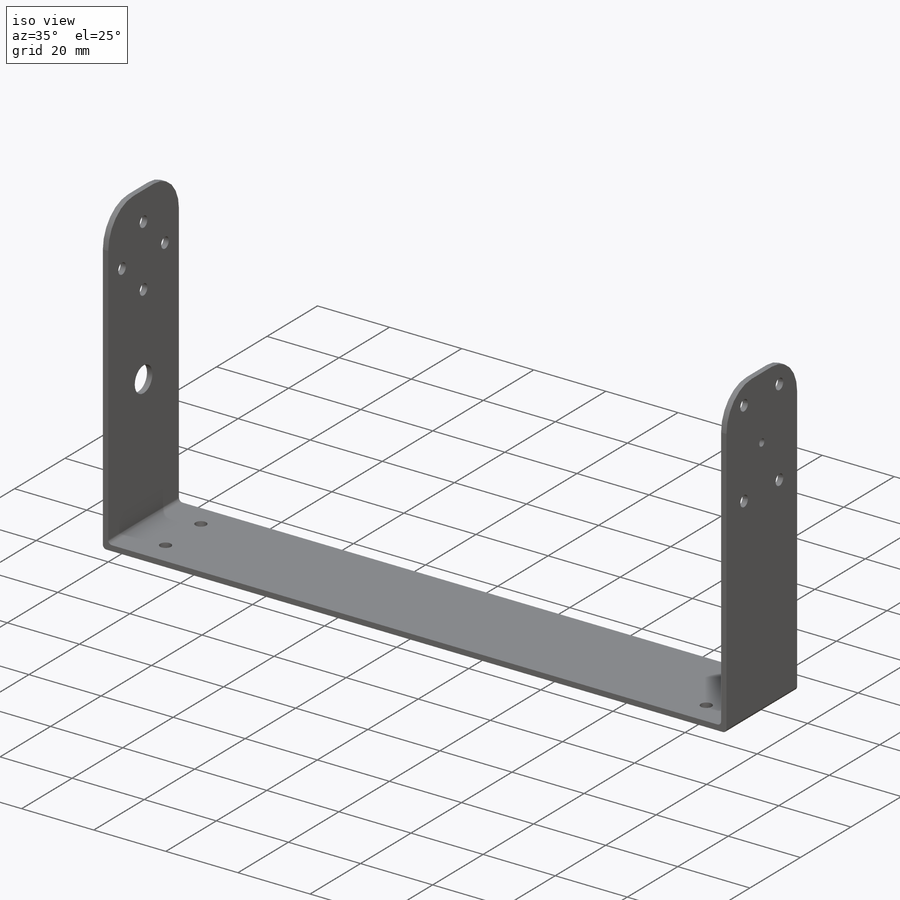
[diagram: iso view]
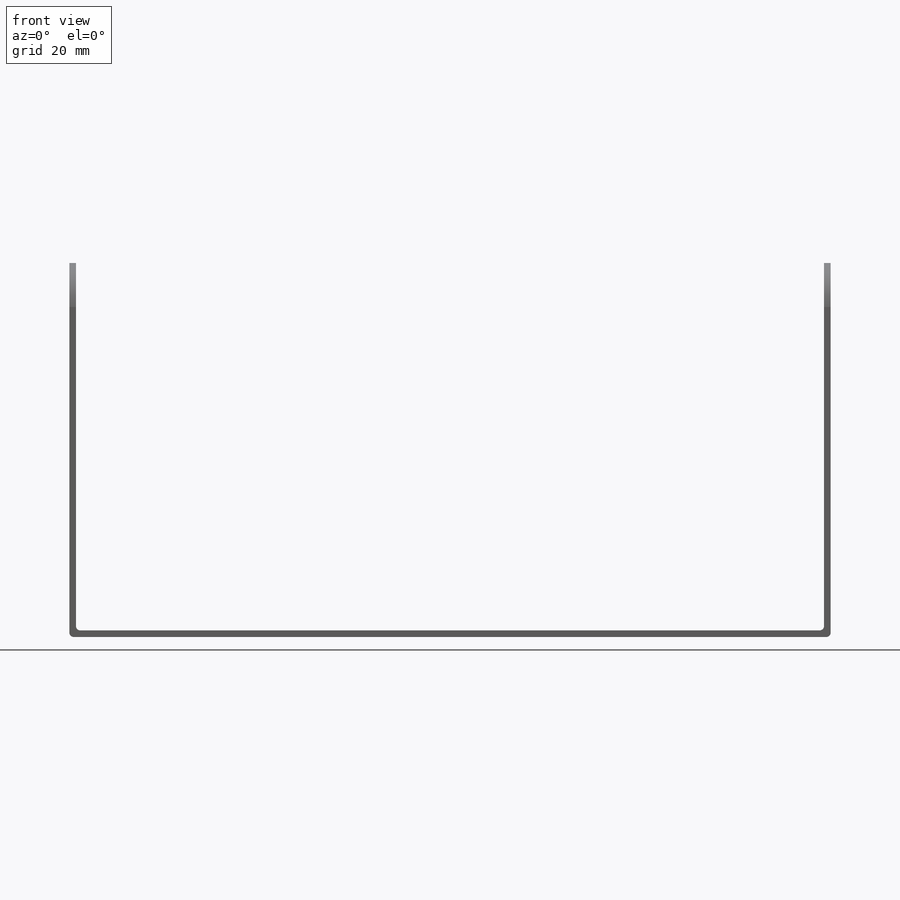
[diagram: front view]
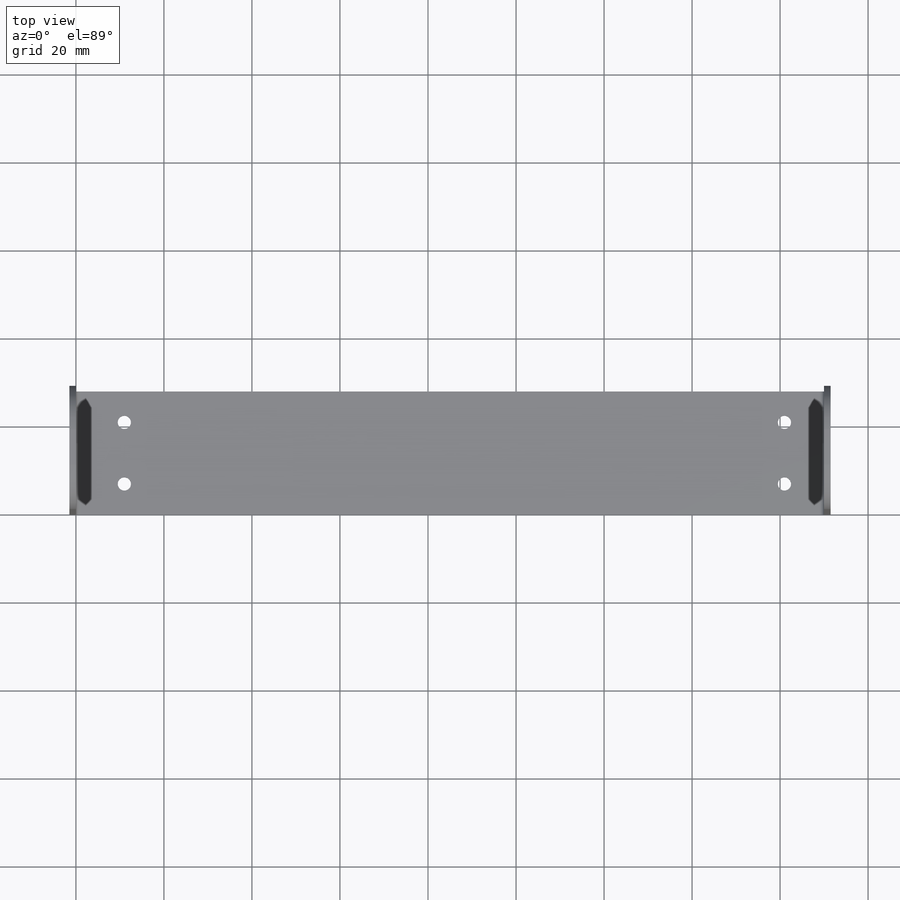
[diagram: top view]
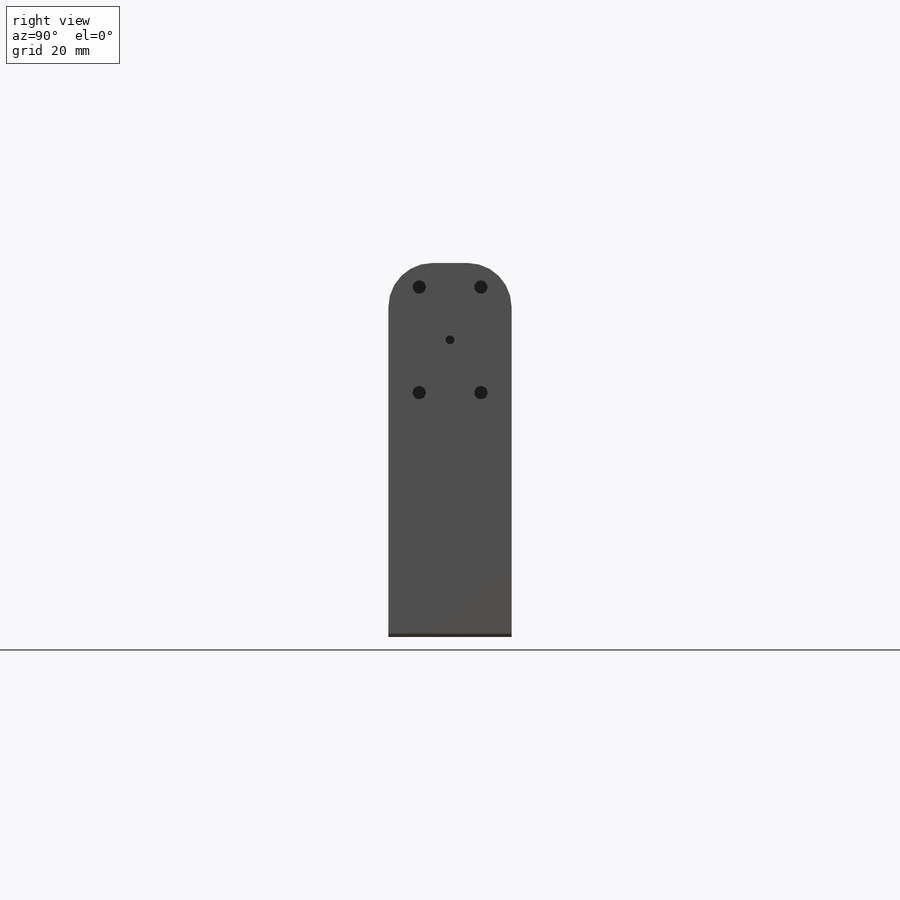
[diagram: right view]
SOLIDWORKS PART (.sldprt)
format: sldprt  version: not decoded by parser v0  size: 315,904 bytes
history: native  units: mm
features: sketch x7, fillet x7, cut_extrude x4, extrude x3, material x1 (+13 scaffold rows collapsed)
feature tree (35):
  scaffold x13  (default folders/planes/origin — collapsed)
  material  "Material <not specified>"
  sketch  "Sketch1"  dims[D1=28.0mm D2=170.0mm D3=14.0mm]
  extrude  "Boss-Extrude1"  Depth=1.5mm
  sketch  "Sketch2"  dims[D1=85.0mm D2=~26.36646mm]
  extrude  "Boss-Extrude2"  Depth=1.5mm
  fillet  "Fillet2"  Radius=10mm
  fillet  "Fillet3"  Radius=1mm
  fillet  "Fillet4"  Radius=1mm
  sketch  "Sketch5"  dims[c1.D1=~3.236785mm c1.D5=1.0mm c2.D1=8.0mm c2.D2=14.0mm c2.D3=17.0mm c2.D4=14.0mm c2.D5=12.0mm c2.D6=20.0mm c2.D7=12.0mm c2.D8=12.0mm c3.D7=~22.985472mm c4.D7=5.5mm c4.D8=16.5mm c4.D9=16.5mm c4.D10=5.5mm c4.D5=28.0mm]
  cut_extrude  "Cut-Extrude2"  Depth=15mm
  sketch  "Sketch7"  dims[D1=3.0mm]
  cut_extrude  "Cut-Extrude3"  Depth=15mm
  sketch  "Sketch8"  dims[c1.D3=~1.480512mm c1.D4=2.0mm c1.D10=1.0mm c1.D1=43.0mm c1.D2=6.0mm c2.D3=6.0mm c2.D4=14.0mm c2.D1=7.0mm c2.D2=7.0mm c3.D3=7.0mm c3.D4=7.0mm c3.D5=150.0mm c3.D6=10.0mm c3.D7=14.0mm c3.D8=150.0mm c3.D9=10.0mm]
  cut_extrude  "Cut-Extrude4"  Depth=15mm
  sketch  "Sketch11"  dims[c1.D3=~2.419446mm c1.D1=85.0mm c1.D2=28.0mm c2.D3=14.0mm c2.D4=17.5mm]
  extrude  "Boss-Extrude5"  Depth=1.5mm
  fillet  "Fillet5"  Radius=1mm
  fillet  "Fillet6"  Radius=1mm
  fillet  "Fillet7"  Radius=10mm
  fillet  "Fillet8"  Radius=10mm
  sketch  "Sketch12"  dims[D1=12.0mm D2=7.0mm D3=12.0mm D4=7.0mm D5=12.0mm D6=7.0mm D7=7.0mm D8=12.0mm]
  cut_extrude  "Cut-Extrude5"  Depth=10mm
decode coverage: 21 of 21 modeling features carry decoded parameters
note: ~ marks probable driven/reference dimensions
note: suppression state not decoded; provenance and decode notes live in map.json
